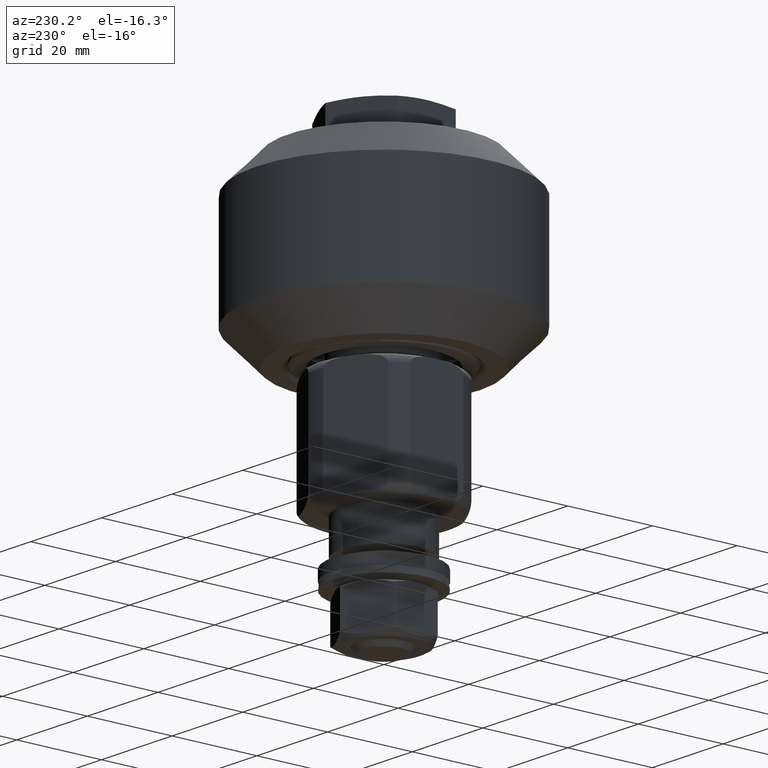
[diagram: clean part render]
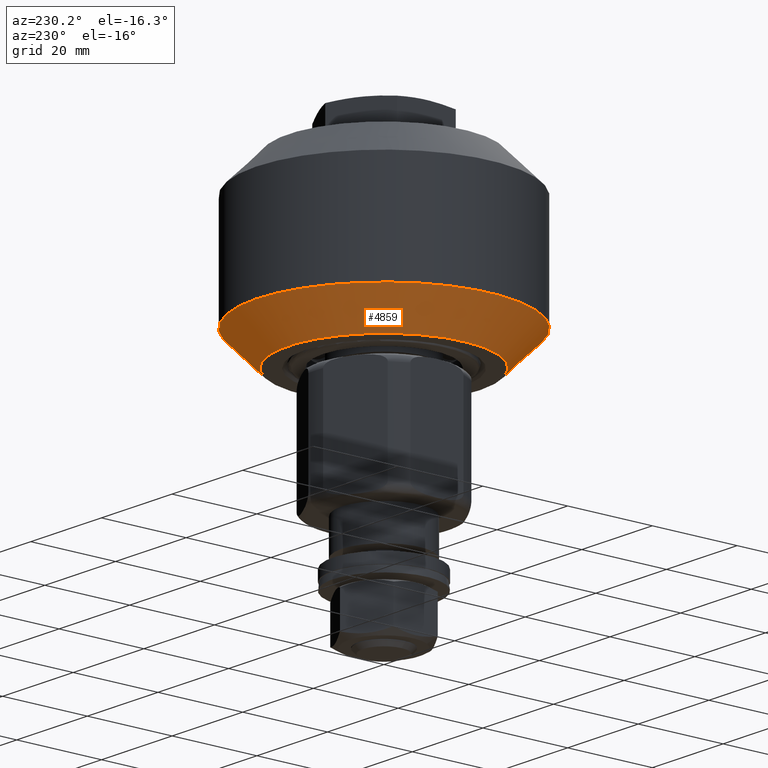
[diagram: same view with one face highlighted and labeled with its STEP entity id]
A machine part, auxiliary view. The second image highlights one B-rep face of the part: STEP entity #4859.
In plain terms, the highlighted conical surface has half-angle 45 deg.
Its self-contained STEP definition (entity closure, byte-faithful):
#471=FACE_OUTER_BOUND('',#748,.T.);
#748=EDGE_LOOP('',(#3389,#3390,#3391,#3392));
#1036=CIRCLE('',#5364,22.5);
#1043=CIRCLE('',#5376,30.);
#1312=LINE('',#7437,#1602);
#1602=VECTOR('',#6024,26.25);
#2027=VERTEX_POINT('',#7413);
#2034=VERTEX_POINT('',#7435);
#2561=EDGE_CURVE('',#2027,#2027,#1036,.T.);
#2571=EDGE_CURVE('',#2034,#2034,#1043,.T.);
#2572=EDGE_CURVE('',#2034,#2027,#1312,.T.);
#3389=ORIENTED_EDGE('',*,*,#2571,.F.);
#3390=ORIENTED_EDGE('',*,*,#2572,.T.);
#3391=ORIENTED_EDGE('',*,*,#2561,.T.);
#3392=ORIENTED_EDGE('',*,*,#2572,.F.);
#4821=CONICAL_SURFACE('',#5375,26.25,0.785398163397448);
#4859=ADVANCED_FACE('',(#471),#4821,.T.);
#5364=AXIS2_PLACEMENT_3D('',#7414,#5995,#5996);
#5375=AXIS2_PLACEMENT_3D('',#7434,#6020,#6021);
#5376=AXIS2_PLACEMENT_3D('',#7436,#6022,#6023);
#5995=DIRECTION('center_axis',(1.,0.,0.));
#5996=DIRECTION('ref_axis',(0.,1.,0.));
#6020=DIRECTION('center_axis',(1.,0.,0.));
#6021=DIRECTION('ref_axis',(0.,1.,0.));
#6022=DIRECTION('center_axis',(1.,0.,0.));
#6023=DIRECTION('ref_axis',(0.,1.,0.));
#6024=DIRECTION('',(-0.707106781186548,0.707106781186548,8.65956056235493E-17));
#7413=CARTESIAN_POINT('',(-20.,-22.5,-2.75545529808154E-15));
#7414=CARTESIAN_POINT('Origin',(-20.,0.,0.));
#7434=CARTESIAN_POINT('Origin',(-16.25,0.,0.));
#7435=CARTESIAN_POINT('',(-12.5,-30.,-3.67394039744206E-15));
#7436=CARTESIAN_POINT('Origin',(-12.5,0.,0.));
#7437=CARTESIAN_POINT('',(-16.25,-26.25,-3.2146978477618E-15));